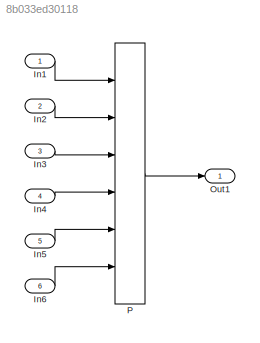
MODEL slx_8b033ed30118
KIND model
CONFIG AbsTol = auto
CONFIG EnableMultiTasking = off
CONFIG FixedStep = auto
CONFIG MaxStep = auto
CONFIG MinStep = auto
CONFIG RelTol = 1e-3
CONFIG SampleTimeConstraint = Unconstrained
CONFIG Solver = FixedStepDiscrete
CONFIG SolverName = FixedStepDiscrete
CONFIG StartTime = 0.0
CONFIG StopTime = 10.0
BLOCK [Inport] In1
  IconDisplay = Port number
  OutDataTypeStr = single
  OutMax = 127
  OutMin = 0
  PortDimensions = 1
BLOCK [Inport] In2
  IconDisplay = Port number
  OutDataTypeStr = single
  OutMax = 127
  OutMin = 0
  Port = 2
BLOCK [Inport] In3
  IconDisplay = Port number
  OutDataTypeStr = single
  OutMax = 127
  OutMin = 0
  Port = 3
BLOCK [Inport] In4
  IconDisplay = Port number
  OutDataTypeStr = single
  OutMax = 127
  OutMin = 0
  Port = 4
BLOCK [Inport] In5
  IconDisplay = Port number
  OutDataTypeStr = single
  OutMax = 127
  OutMin = 0
  Port = 5
BLOCK [Inport] In6
  IconDisplay = Port number
  OutDataTypeStr = single
  OutMax = 127
  OutMin = 0
  Port = 6
BLOCK [Outport] Out1
  IconDisplay = Port number
BLOCK [Lookup_n-D] P
  BreakpointsForDimension1 = [11.85469112803;64.874153220493]
  BreakpointsForDimension1DataTypeStr = int16
  BreakpointsForDimension2 = [2.95942596612804;10.8586691122755;51.2896084520372;86.6441080283528;94.9346929416005]
  BreakpointsForDimension2DataTypeStr = int16
  BreakpointsForDimension3 = [14.8298960066499;83.4295978319009;95.7432268121904]
  BreakpointsForDimension3DataTypeStr = int16
  BreakpointsForDimension4 = [15.2489263217398;89.3720211330674]
  BreakpointsForDimension4DataTypeStr = int16
  BreakpointsForDimension5 = [18.109237470221;32.9710200874685;87.1106088723667]
  BreakpointsForDimension5DataTypeStr = int16
  BreakpointsForDimension6 = [12.1492307344412;48.7080133378592;56.5392845021987;102.624951287744]
  BreakpointsForDimension6DataTypeStr = int16
  ExtrapMethod = Clip
  InternalRulePriority = Speed
  InterpMethod = Flat
  NumberOfTableDimensions = 6
  OutDataTypeStr = Inherit: Inherit from 'Table data'
  Ports = [6, 1]
  RndMeth = Nearest
  SaturateOnIntegerOverflow = on
  Table = reshape(repmat([4 5 6 7 8;16 19 20 21 22;10 18 23 24 25],6,8),[2,5,3,2,3, 4])
  TableDataTypeStr = double
  UseLastTableValue = on
LINE In1:1 -> P:1
LINE In2:1 -> P:2
LINE In3:1 -> P:3
LINE In4:1 -> P:4
LINE In5:1 -> P:5
LINE In6:1 -> P:6
LINE P:1 -> Out1:1
